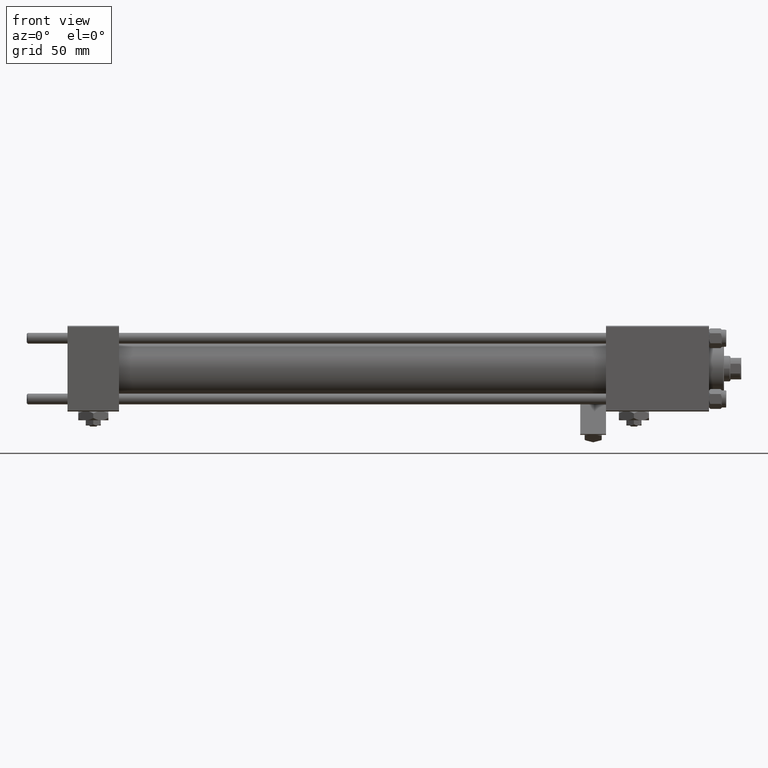
[diagram: clean part render]
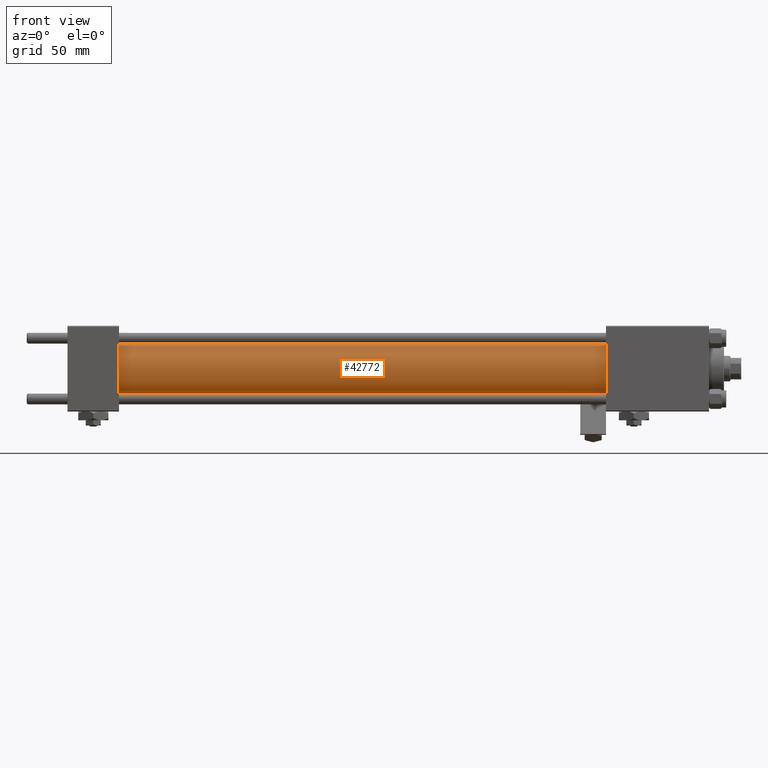
[diagram: same view with one face highlighted and labeled with its STEP entity id]
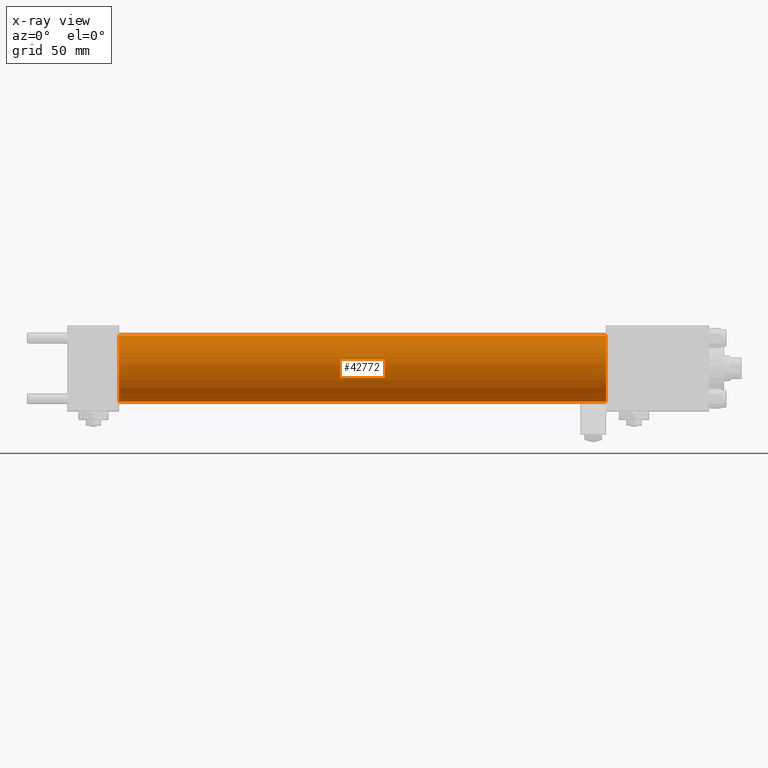
[diagram: x-ray of the same camera — body ghosted, the highlighted face saturated]
A machine part, front view. The second image highlights one B-rep face of the part: STEP entity #42772.
The next image is the same camera in x-ray: the body ghosted, the highlighted face saturated — about 0% of this face is hidden behind the body in this view.
In plain terms, the highlighted cylindrical surface (edge-blend (fillet) strip) has radius 15.5 mm, axis along (-1, -0, -0).
Its self-contained STEP definition (entity closure, byte-faithful):
#313 = DIRECTION ( 'NONE',  ( 1.000000000000000000, 0.000000000000000000, 0.000000000000000000 ) ) ;
#575 = CARTESIAN_POINT ( 'NONE',  ( 23.99999999999999289, 0.000000000000000000, 0.000000000000000000 ) ) ;
#1043 = AXIS2_PLACEMENT_3D ( 'NONE', #575, #313, #32907 ) ;
#2257 = ORIENTED_EDGE ( 'NONE', *, *, #49276, .F. ) ;
#4374 = DIRECTION ( 'NONE',  ( -1.000000000000000000, -0.000000000000000000, -0.000000000000000000 ) ) ;
#4473 = AXIS2_PLACEMENT_3D ( 'NONE', #25887, #5583, #45886 ) ;
#5583 = DIRECTION ( 'NONE',  ( -1.000000000000000000, -0.000000000000000000, -0.000000000000000000 ) ) ;
#8158 = EDGE_CURVE ( 'NONE', #35564, #14461, #12648, .T. ) ;
#12248 = VECTOR ( 'NONE', #40025, 1000.000000000000000 ) ;
#12648 = LINE ( 'NONE', #23881, #23030 ) ;
#14461 = VERTEX_POINT ( 'NONE', #28879 ) ;
#14867 = EDGE_CURVE ( 'NONE', #35564, #34847, #15976, .T. ) ;
#15976 = CIRCLE ( 'NONE', #17663, 15.50000000000000000 ) ;
#17663 = AXIS2_PLACEMENT_3D ( 'NONE', #37626, #45355, #20792 ) ;
#20792 = DIRECTION ( 'NONE',  ( 0.000000000000000000, 0.000000000000000000, -1.000000000000000000 ) ) ;
#22197 = CARTESIAN_POINT ( 'NONE',  ( 251.0000000000000000, 1.898202538678397163E-15, -15.50000000000000000 ) ) ;
#23030 = VECTOR ( 'NONE', #4374, 1000.000000000000000 ) ;
#23881 = CARTESIAN_POINT ( 'NONE',  ( 251.0000000000000000, 0.000000000000000000, 15.50000000000000000 ) ) ;
#24067 = CIRCLE ( 'NONE', #1043, 15.50000000000000000 ) ;
#24271 = CARTESIAN_POINT ( 'NONE',  ( 251.0000000000000000, 1.898202538678397163E-15, -15.50000000000000000 ) ) ;
#25887 = CARTESIAN_POINT ( 'NONE',  ( 251.0000000000000000, 0.000000000000000000, 0.000000000000000000 ) ) ;
#28879 = CARTESIAN_POINT ( 'NONE',  ( 23.99999999999999289, 0.000000000000000000, 15.50000000000000000 ) ) ;
#29619 = CYLINDRICAL_SURFACE ( 'NONE', #4473, 15.50000000000000000 ) ;
#32907 = DIRECTION ( 'NONE',  ( 0.000000000000000000, 0.000000000000000000, 1.000000000000000000 ) ) ;
#34847 = VERTEX_POINT ( 'NONE', #22197 ) ;
#35564 = VERTEX_POINT ( 'NONE', #51313 ) ;
#37626 = CARTESIAN_POINT ( 'NONE',  ( 251.0000000000000000, 0.000000000000000000, 0.000000000000000000 ) ) ;
#37645 = EDGE_LOOP ( 'NONE', ( #2257, #49345, #38237, #44007 ) ) ;
#38237 = ORIENTED_EDGE ( 'NONE', *, *, #8158, .T. ) ;
#38427 = FACE_OUTER_BOUND ( 'NONE', #37645, .T. ) ;
#40025 = DIRECTION ( 'NONE',  ( -1.000000000000000000, -0.000000000000000000, -0.000000000000000000 ) ) ;
#42772 = ADVANCED_FACE ( 'NONE', ( #38427 ), #29619, .T. ) ;
#44007 = ORIENTED_EDGE ( 'NONE', *, *, #46633, .T. ) ;
#44537 = LINE ( 'NONE', #24271, #12248 ) ;
#45355 = DIRECTION ( 'NONE',  ( 1.000000000000000000, 0.000000000000000000, 0.000000000000000000 ) ) ;
#45886 = DIRECTION ( 'NONE',  ( 0.000000000000000000, 0.000000000000000000, 1.000000000000000000 ) ) ;
#46203 = CARTESIAN_POINT ( 'NONE',  ( 23.99999999999999289, 1.898202538678397163E-15, -15.50000000000000000 ) ) ;
#46633 = EDGE_CURVE ( 'NONE', #14461, #52546, #24067, .T. ) ;
#49276 = EDGE_CURVE ( 'NONE', #34847, #52546, #44537, .T. ) ;
#49345 = ORIENTED_EDGE ( 'NONE', *, *, #14867, .F. ) ;
#51313 = CARTESIAN_POINT ( 'NONE',  ( 251.0000000000000000, 0.000000000000000000, 15.50000000000000000 ) ) ;
#52546 = VERTEX_POINT ( 'NONE', #46203 ) ;